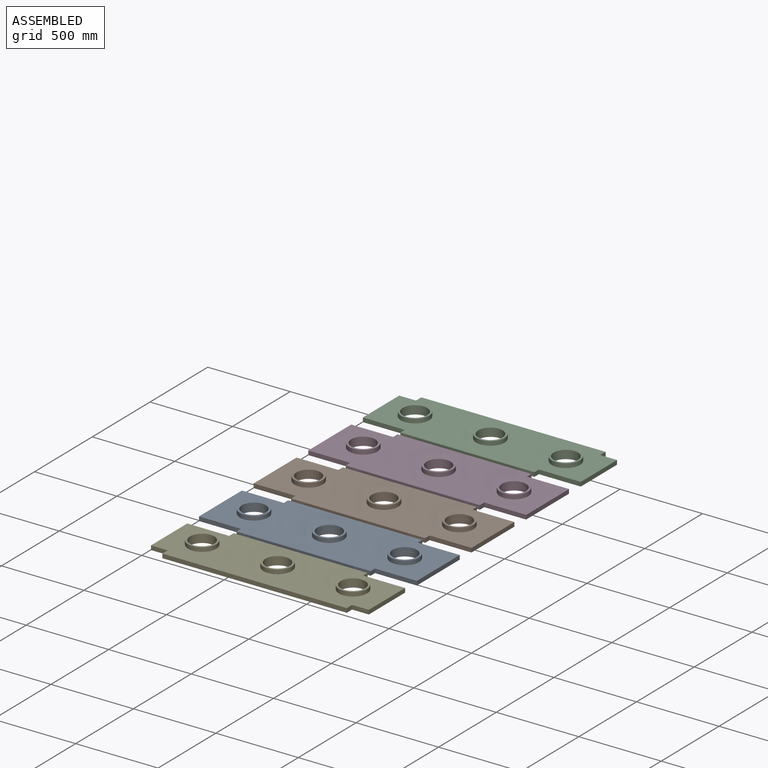
[diagram: assembled view]
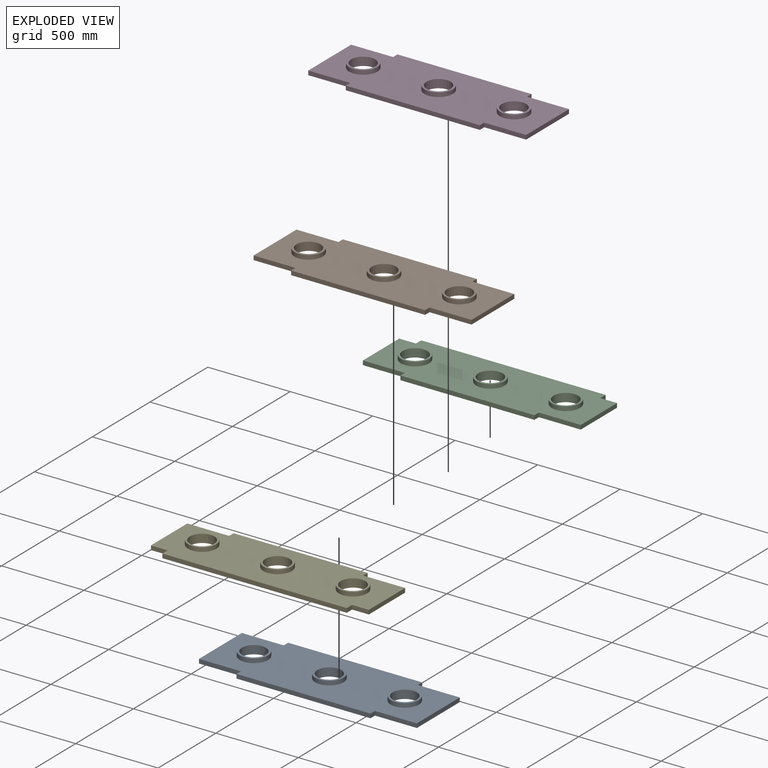
[diagram: exploded view]
GUIDED TOUR — MATED ASSEMBLY (Onshape document b614b5e2732e603632031d25, AutoMate assembly b614b5e2732e603632031d25_f9def03a15eb4cea64b83cd3_bcc4dc0e58ea4e7644620f30_default)

This assembly has 5 components, labeled P0..P4 below (a component is one placed occurrence of a part; the same part can appear more than once), held together by 4 mates. A mate is a constraint between two components; its type names the relative motion it leaves free:
  PLANAR — leaves sliding in the plane through the listed point (normal = the listed direction) and rotation about that normal free.
Axis/direction vectors are unit vectors and 'through' points are millimeter coordinates, both in the assembly's world frame.

MATES
  1. PLANAR "Planar 1": P0 <-> P4, direction (0.000, 0.000, 1.000) through (576.93, -484.45, 142.89) mm
  2. PLANAR "Planar 2": P1 <-> P0, direction (0.000, 0.000, 1.000) through (576.93, -11.38, 142.89) mm
  3. PLANAR "Planar 3": P3 <-> P1, direction (0.000, 0.000, 1.000) through (576.93, 461.70, 142.89) mm
  4. PLANAR "Planar 4": P2 <-> P3, direction (0.000, 0.000, 1.000) through (170.53, 934.77, 142.89) mm

ASSEMBLY ORDER
  1. P4 — the base component [order verified]
  2. P2 [order verified]
  3. P0 [order verified]
  4. P1 [order verified]
  5. P3 [order verified]
Order-tag legend:
  [order verified] — this step's position reverses a verified removal order: the component was checked to insert without passing through the ones already placed.

Of the 5 components, 2 carry the full construction recipe — the FeatureScript program that regenerates the part's solid from scratch; the rest are supplied as boundary geometry only.
Each toured component is shown spotlighted twice — in the assembled view, then in the exploded view, where a leader line traces a displaced component back to its assembled socket (saturated green if recipe-attached, orange if geometry-only; every other component desaturated gray) — followed by its recipe or geometry summary and the mates that hold it.
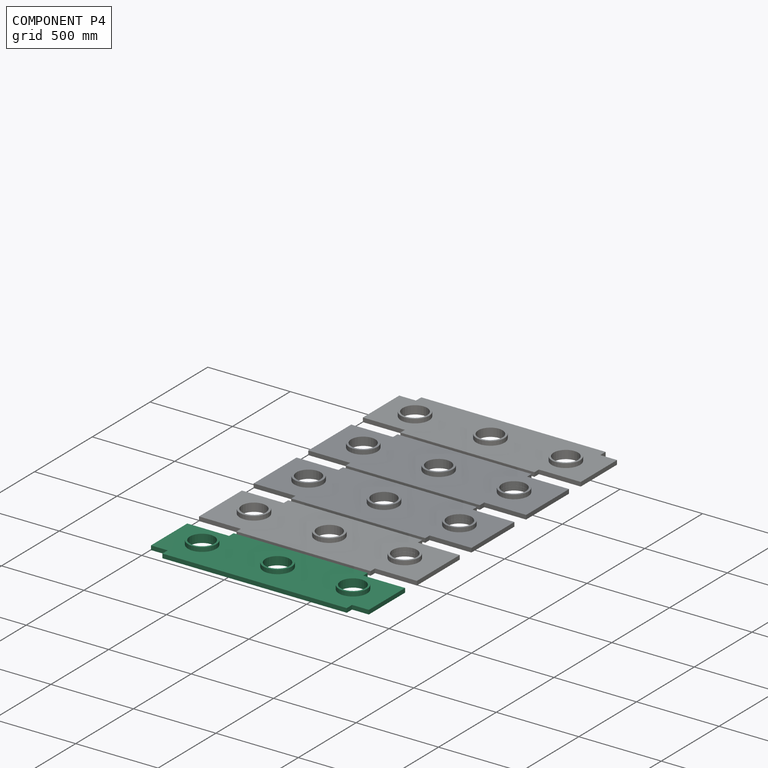
[diagram: component P4 — assembled]
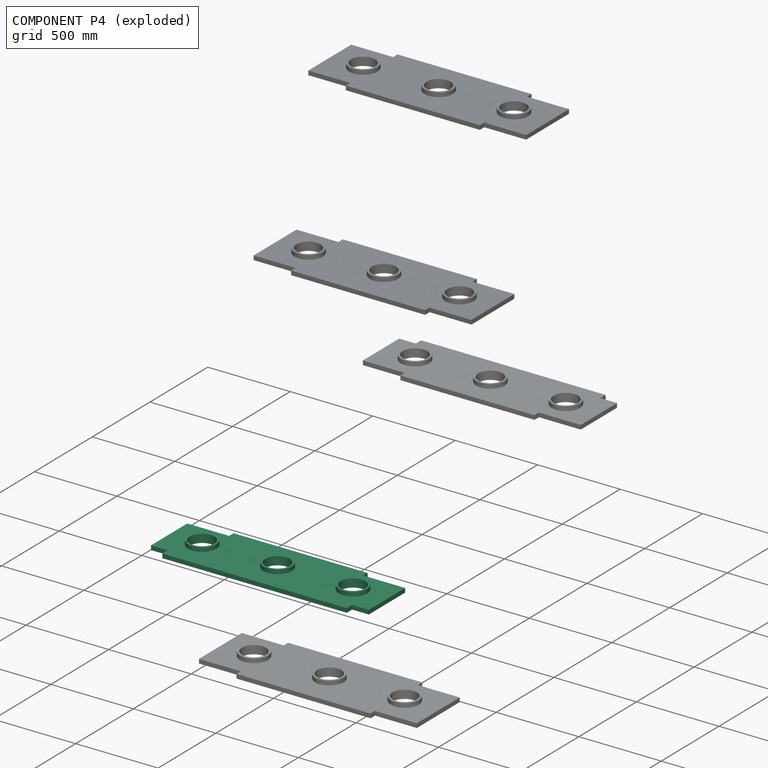
[diagram: component P4 — exploded]
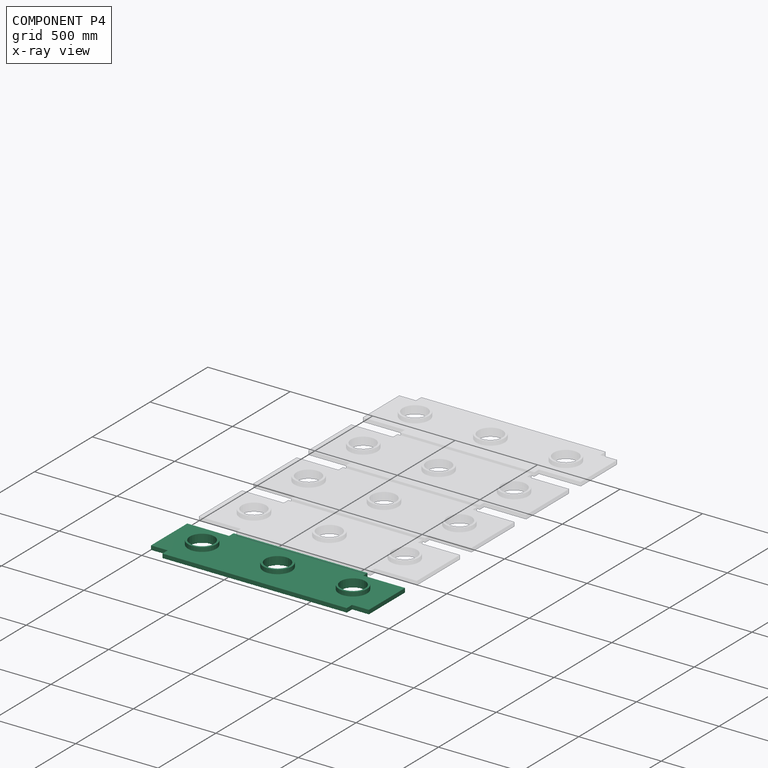
[diagram: component P4 — x-ray view]
COMPONENT P4 — same part as P2 (CADFS 00134554); its construction recipe is shown at P2.
Held by: PLANAR mate "Planar 1" to P0.
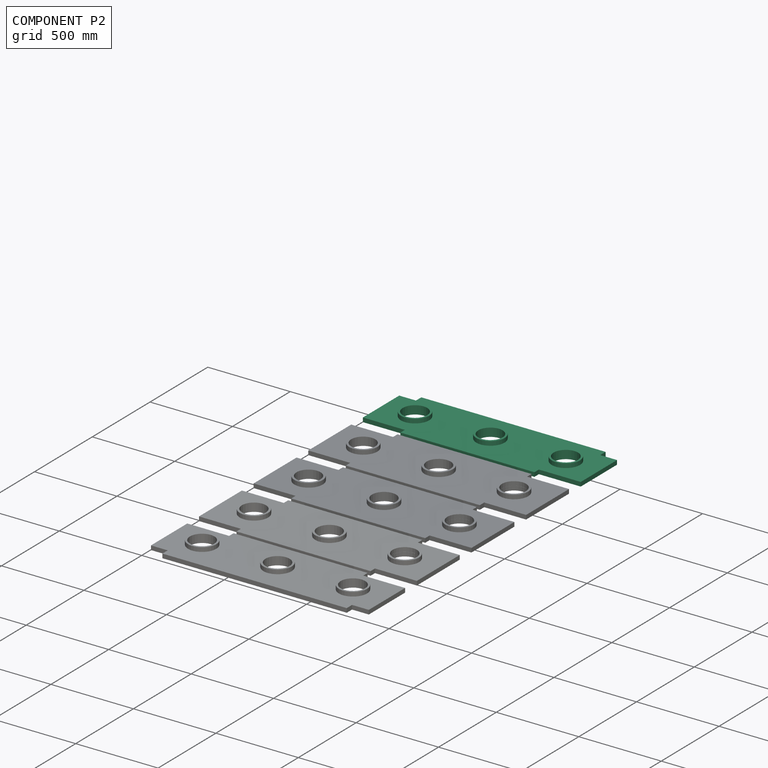
[diagram: component P2 — assembled]
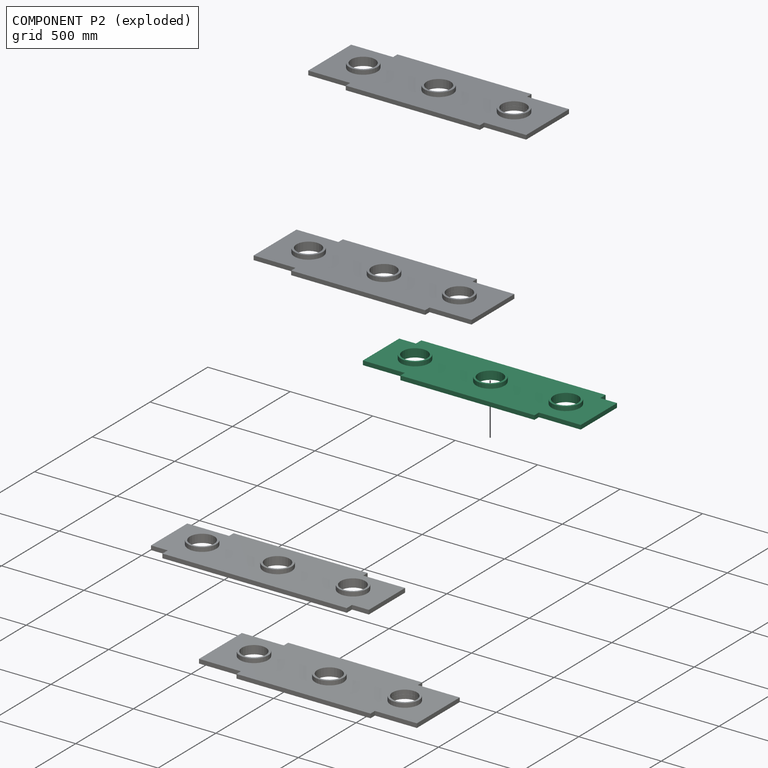
[diagram: component P2 — exploded]
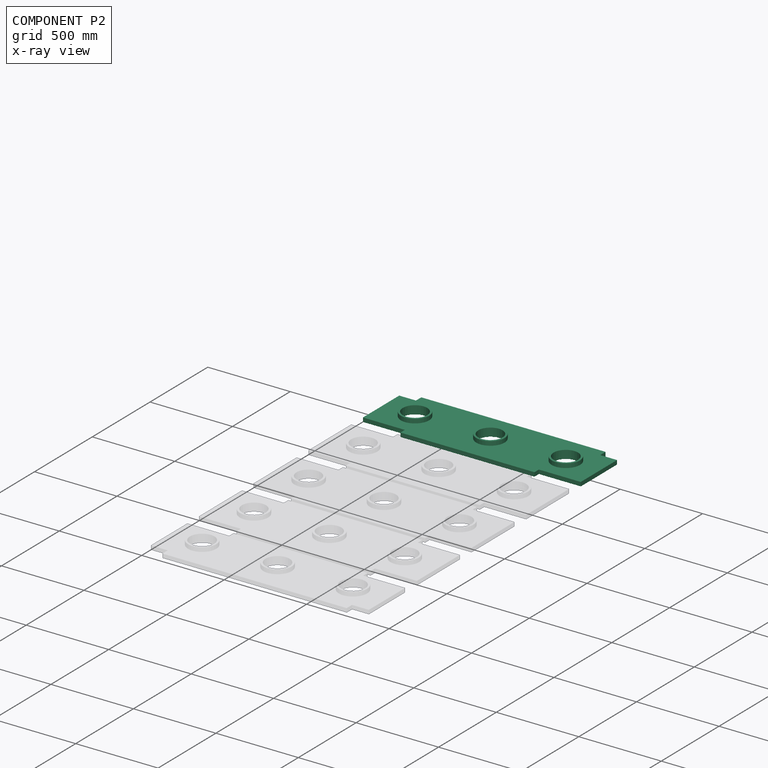
[diagram: component P2 — x-ray view]
COMPONENT P2 — recipe-attached (CADFS 00134554, mesh-verified: the recipe's output STEP matches this component's geometry to below the mesh-comparison resolution (tessellation chordal tolerance ~2.07 mm)).
Held by: PLANAR mate "Planar 4" to P3.
Construction recipe (FeatureScript — the CAD program that rebuilds this solid; sketch coordinates are in the units given by the * unit suffixes, e.g. mm):

FeatureScript 2491;
import(path : "onshape/std/geometry.fs", version : "2491.0");
import(path : "onshape/std/common.fs", version : "2491.0");
const mm = millimeter;
const VERTEX = EntityType.VERTEX;
const EDGE = EntityType.EDGE;
const FACE = EntityType.FACE;
const BODY = EntityType.BODY;
function v(x, y){return vector(x, y);}
function OD(order){return orderDisambiguation(order);}
function OSD(set){return originalSetDisambiguation(set);}
function TD(topology){return topologyDisambiguation(topology);}
function TDD(query){return trueDependencyDisambiguation(query);}
function sQuery(a, b, c) {return sketchEntityQuery(a, b, c);}

annotation { "Feature Type Name" : "Feature", "Feature Type Description" : "" }
export const myFeature = defineFeature(function(context is Context, id is Id, definition is map)
    precondition{}
    {
        {
            var Q0;
            Q0=qCreatedBy(makeId("Top.planeOp"),FACE);
            var sketch = newSketch(context, id + "F0", { "sketchPlane" : qUnion([Q0])});
            skLineSegment(sketch, "E0", {"start": v(-60.36, 306.04) * mm, "end": v(-60.36, -8.28) * mm});
            skLineSegment(sketch, "E1", {"start": v(-60.36, -8.28) * mm, "end": v(41.24, -8.28) * mm});
            skLineSegment(sketch, "E2", {"start": v(41.24, -8.28) * mm, "end": v(41.24, -54.32) * mm});
            skLineSegment(sketch, "E3", {"start": v(41.24, -54.32) * mm, "end": v(1158.84, -54.32) * mm});
            skLineSegment(sketch, "E4", {"start": v(1158.84, -54.32) * mm, "end": v(1158.84, -8.28) * mm});
            skLineSegment(sketch, "E5", {"start": v(1158.84, -8.28) * mm, "end": v(1260.44, -8.28) * mm});
            skLineSegment(sketch, "E6", {"start": v(1260.44, -8.28) * mm, "end": v(1260.44, 306.04) * mm});
            skLineSegment(sketch, "E7", {"start": v(1260.44, 306.04) * mm, "end": v(1006.44, 306.04) * mm});
            skLineSegment(sketch, "E8", {"start": v(1006.44, 306.04) * mm, "end": v(1006.44, 344.14) * mm});
            skLineSegment(sketch, "E9", {"start": v(1006.44, 344.14) * mm, "end": v(193.64, 344.14) * mm});
            skLineSegment(sketch, "E10", {"start": v(193.64, 344.14) * mm, "end": v(193.64, 306.04) * mm});
            skLineSegment(sketch, "E11", {"start": v(193.64, 306.04) * mm, "end": v(-60.36, 306.04) * mm});
            skLineSegment(sketch, "E12", {"start": v(600.04, -54.32) * mm, "end": v(600.04, 344.14) * mm});
            skCircle(sketch, "E13", {"center": v(600.04, 144.91) * mm, "radius": 85.73 * mm});
            skCircle(sketch, "E14", {"center": v(600.04, 144.91) * mm, "radius": 73.68 * mm});
            skLineSegment(sketch, "E15", {"start": v(600.04, 144.91) * mm, "end": v(142.84, 144.91) * mm});
            skLineSegment(sketch, "E16", {"start": v(600.04, 144.91) * mm, "end": v(1057.24, 144.91) * mm});
            skCircle(sketch, "E17", {"center": v(142.84, 144.91) * mm, "radius": 85.73 * mm});
            skCircle(sketch, "E18", {"center": v(1057.24, 144.91) * mm, "radius": 85.73 * mm});
            skCircle(sketch, "E19", {"center": v(142.84, 144.91) * mm, "radius": 74.19 * mm});
            skCircle(sketch, "E20", {"center": v(1057.24, 144.91) * mm, "radius": 74.37 * mm});
            skSolve(sketch);
        }
        {
            var Q0;
            Q0 = qSketchRegion(id + "F0", true);
            extrude(context, id + "F1", {"entities" : qUnion([Q0]), "depth" : 25.4 * mm});
        }
        {
            var Q0;
            Q0=makeQuery(id+"F0.imprint","IMPRINT",FACE,{"disambiguationData":[TD([[makeQuery(id+"F0.imprint","IMPRINT",EDGE,{"derivedFrom":sQuery(id+"F0.wireOp",EDGE,"E17")}),1.0]])]});
            extrude(context, id + "F2", {"entities" : qUnion([Q0]), "operationType" : NewBodyOperationType.ADD, "depth" : 50.8 * mm});
        }
        {
            var Q0;
            {var subQ0=sQuery(id+"F0.wireOp",EDGE,"E13");var subQ1=sQuery(id+"F0.wireOp",EDGE,"E12");var subQ2=makeQuery(id+"F0.imprint","INTERSECT",VERTEX,{"disambiguationData":[OD(0.0)],"derivedFrom":[subQ1,subQ0]});Q0=makeQuery(id+"F0.imprint","IMPRINT",FACE,{"disambiguationData":[TD([[makeQuery(id+"F0.imprint","IMPRINT",EDGE,{"disambiguationData":[TD([[subQ2,-1.0]])],"derivedFrom":subQ1}),-1.0]])]});}
            var Q1;
            {var subQ0=sQuery(id+"F0.wireOp",EDGE,"E14");var subQ1=sQuery(id+"F0.wireOp",EDGE,"E12");var subQ2=makeQuery(id+"F0.imprint","INTERSECT",VERTEX,{"disambiguationData":[OD(1.0)],"derivedFrom":[subQ1,subQ0]});Q1=makeQuery(id+"F0.imprint","IMPRINT",FACE,{"disambiguationData":[TD([[makeQuery(id+"F0.imprint","IMPRINT",EDGE,{"disambiguationData":[TD([[subQ2,-1.0]])],"derivedFrom":subQ1}),-1.0]])]});}
            var Q2;
            {var subQ0=sQuery(id+"F0.wireOp",EDGE,"E14");var subQ1=sQuery(id+"F0.wireOp",EDGE,"E12");var subQ2=makeQuery(id+"F0.imprint","INTERSECT",VERTEX,{"disambiguationData":[OD(1.0)],"derivedFrom":[subQ1,subQ0]});Q2=makeQuery(id+"F0.imprint","IMPRINT",FACE,{"disambiguationData":[TD([[makeQuery(id+"F0.imprint","IMPRINT",EDGE,{"disambiguationData":[TD([[subQ2,-1.0]])],"derivedFrom":subQ1}),1.0]])]});}
            var Q3;
            {var subQ0=sQuery(id+"F0.wireOp",EDGE,"E13");var subQ1=sQuery(id+"F0.wireOp",EDGE,"E12");var subQ2=makeQuery(id+"F0.imprint","INTERSECT",VERTEX,{"disambiguationData":[OD(0.0)],"derivedFrom":[subQ1,subQ0]});Q3=makeQuery(id+"F0.imprint","IMPRINT",FACE,{"disambiguationData":[TD([[makeQuery(id+"F0.imprint","IMPRINT",EDGE,{"disambiguationData":[TD([[subQ2,-1.0]])],"derivedFrom":subQ1}),1.0]])]});}
            extrude(context, id + "F3", {"entities" : qUnion([Q0, Q1, Q2, Q3]), "operationType" : NewBodyOperationType.ADD, "depth" : 50.8 * mm});
        }
        {
            var Q0;
            Q0=makeQuery(id+"F0.imprint","IMPRINT",FACE,{"disambiguationData":[TD([[makeQuery(id+"F0.imprint","IMPRINT",EDGE,{"derivedFrom":sQuery(id+"F0.wireOp",EDGE,"E18")}),1.0]])]});
            extrude(context, id + "F4", {"entities" : qUnion([Q0]), "operationType" : NewBodyOperationType.ADD, "depth" : 50.8 * mm});
        }
    });
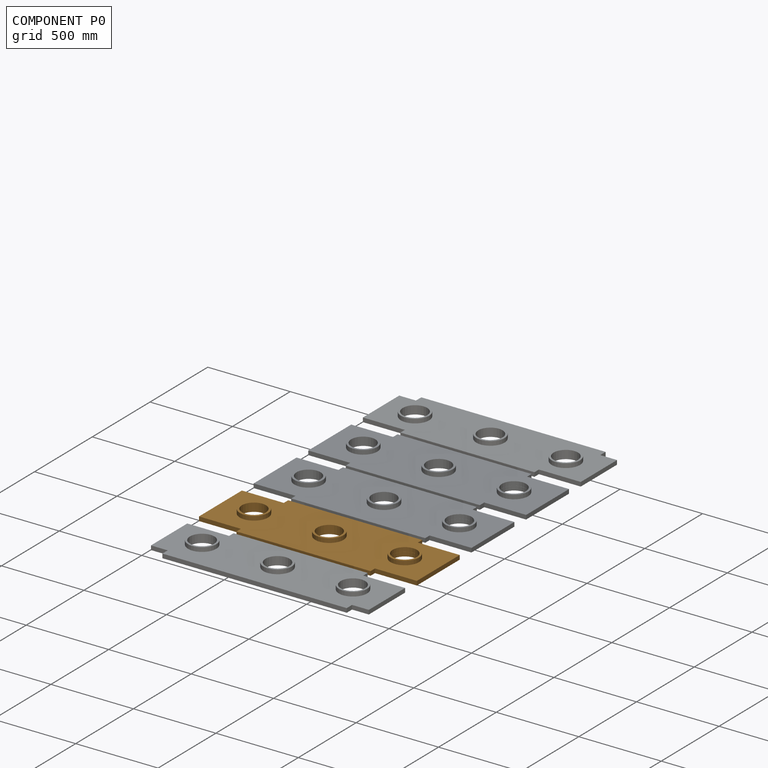
[diagram: component P0 — assembled]
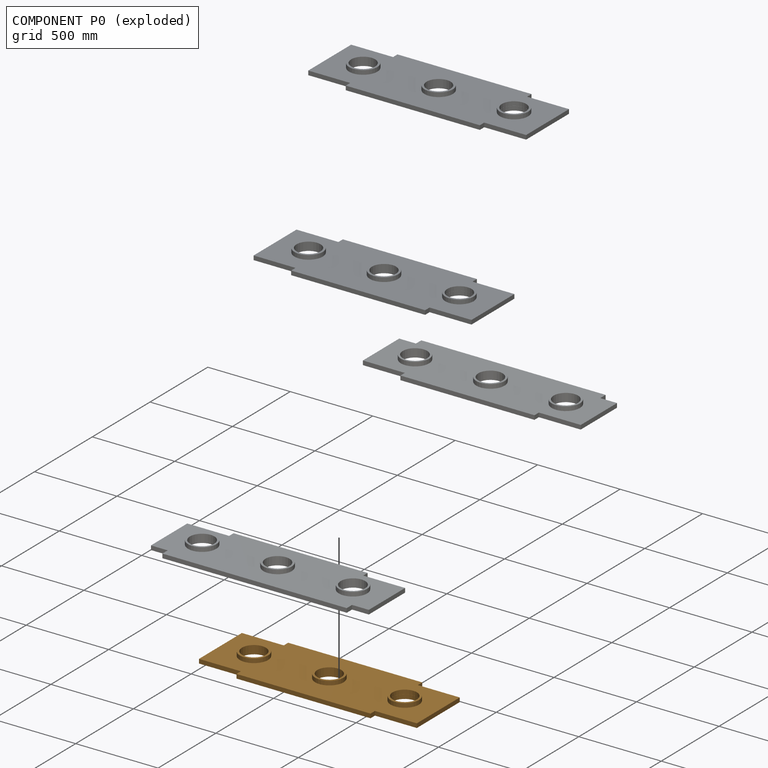
[diagram: component P0 — exploded]
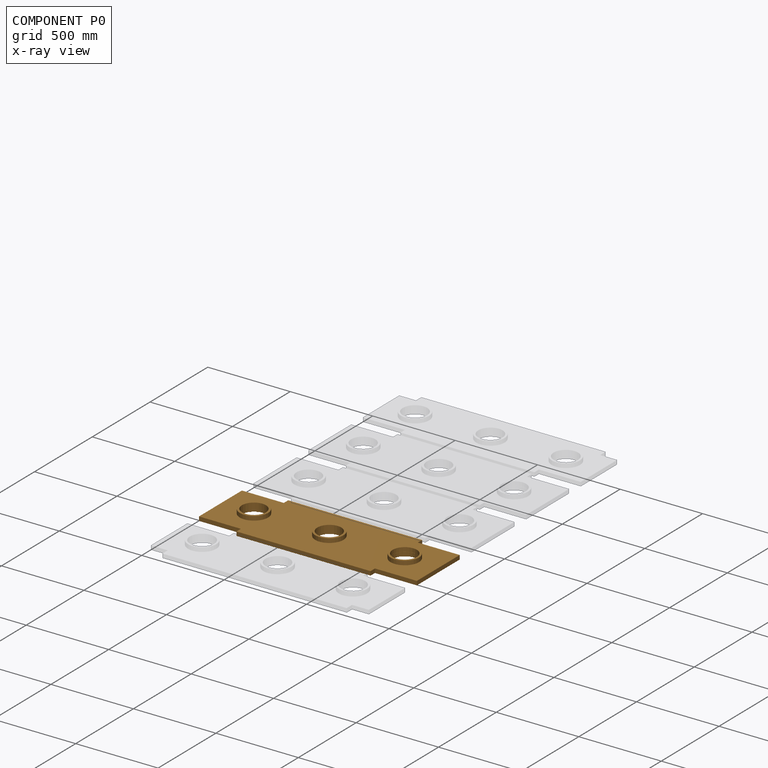
[diagram: component P0 — x-ray view]
COMPONENT P0 — geometry summary (no construction recipe available for this part):
  bounding box: 1320.8 x 447.7 x 50.8 mm
  B-rep topology: 1 solid, 25 faces, 114 edges
  volume: 13234749 mm^3 (44% of its bounding box)
  symmetry: 2-fold rotationally symmetric about the z axis; mirror-symmetric across its x mid-plane, y mid-plane
Held by: PLANAR mate "Planar 1" to P4; PLANAR mate "Planar 2" to P1.
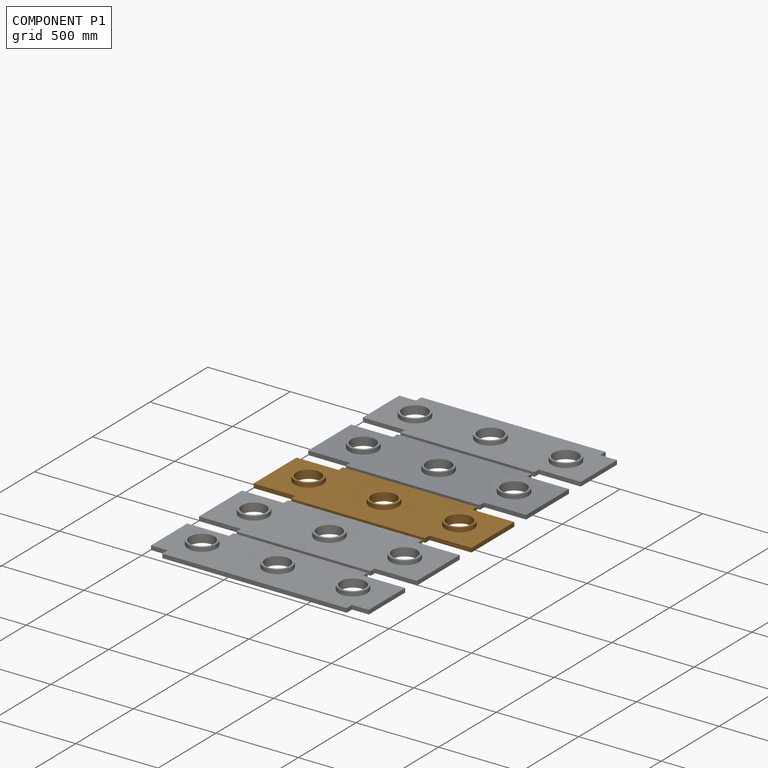
[diagram: component P1 — assembled]
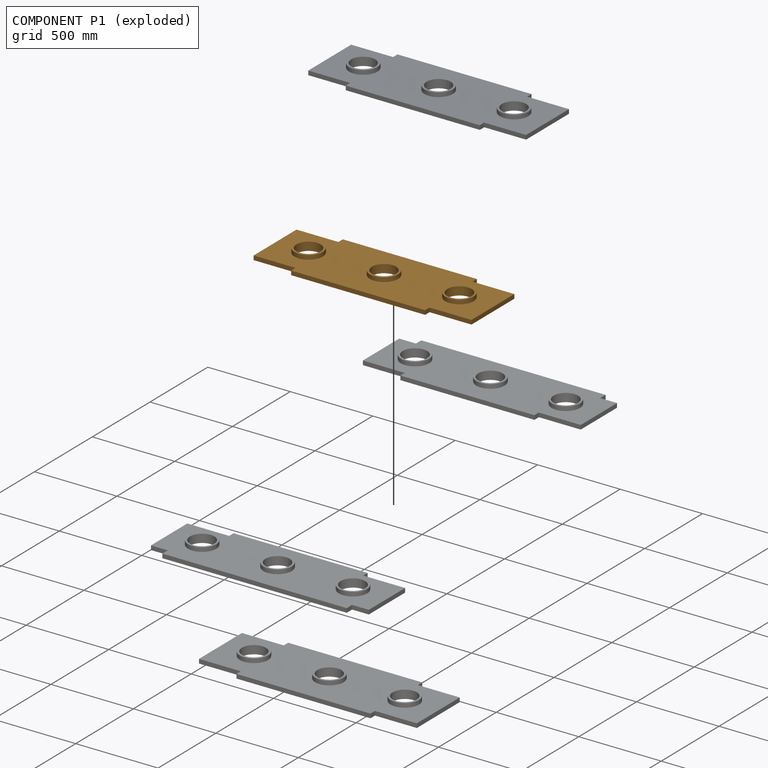
[diagram: component P1 — exploded]
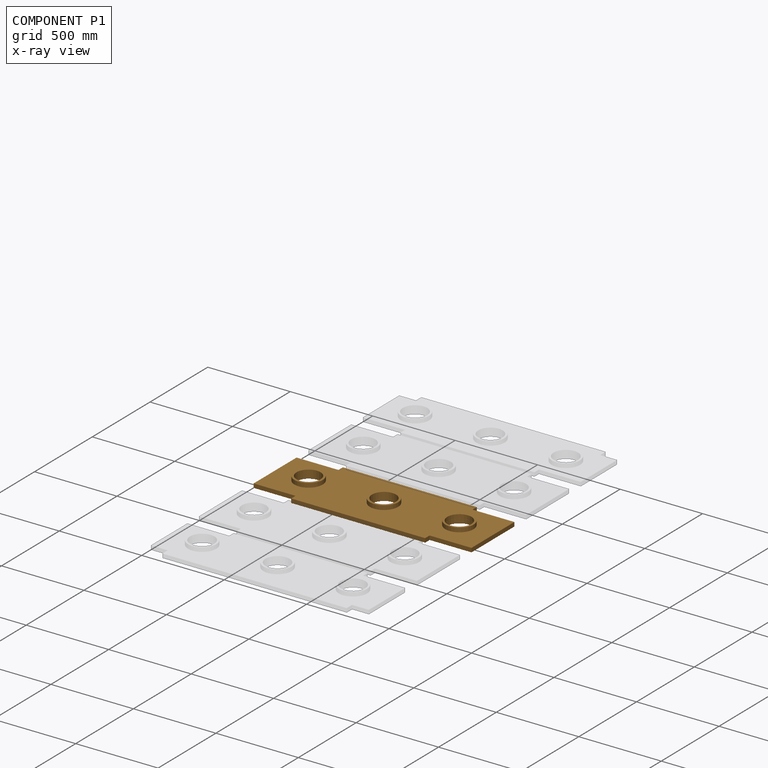
[diagram: component P1 — x-ray view]
COMPONENT P1 — geometry summary (no construction recipe available for this part):
  bounding box: 1320.8 x 447.7 x 50.8 mm
  B-rep topology: 1 solid, 25 faces, 114 edges
  volume: 13234749 mm^3 (44% of its bounding box)
  symmetry: 2-fold rotationally symmetric about the z axis; mirror-symmetric across its x mid-plane, y mid-plane
Held by: PLANAR mate "Planar 2" to P0; PLANAR mate "Planar 3" to P3.
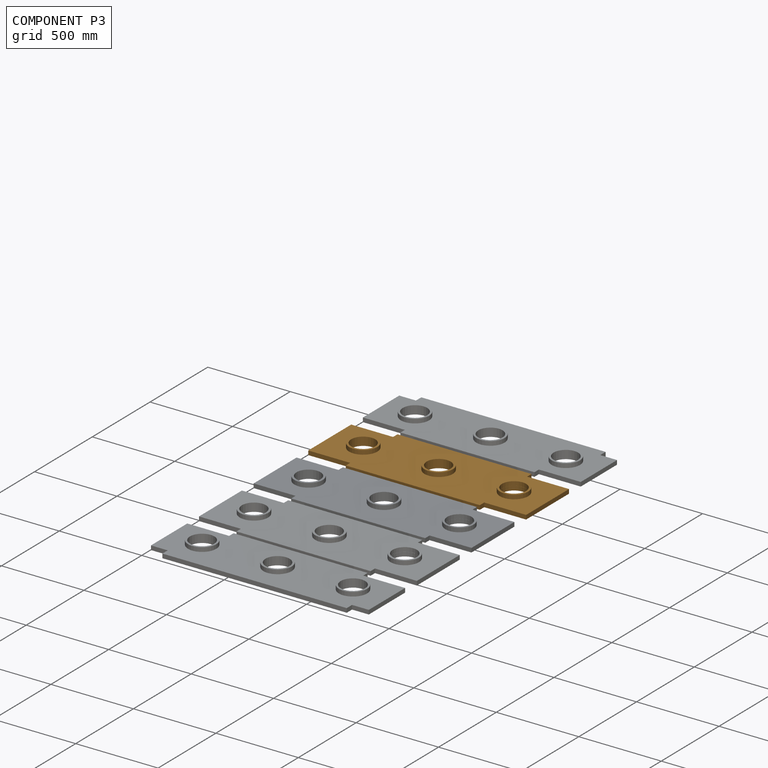
[diagram: component P3 — assembled]
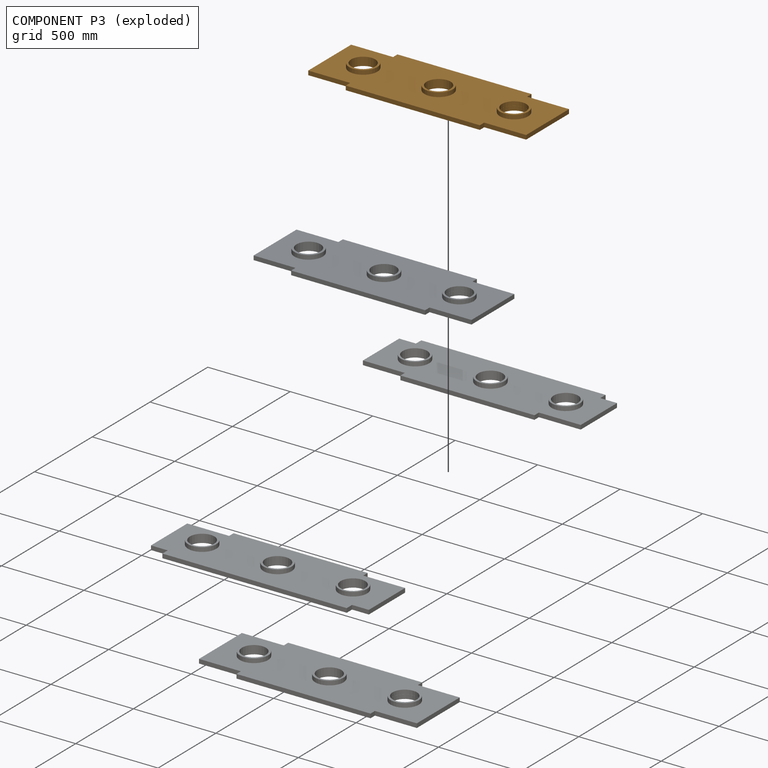
[diagram: component P3 — exploded]
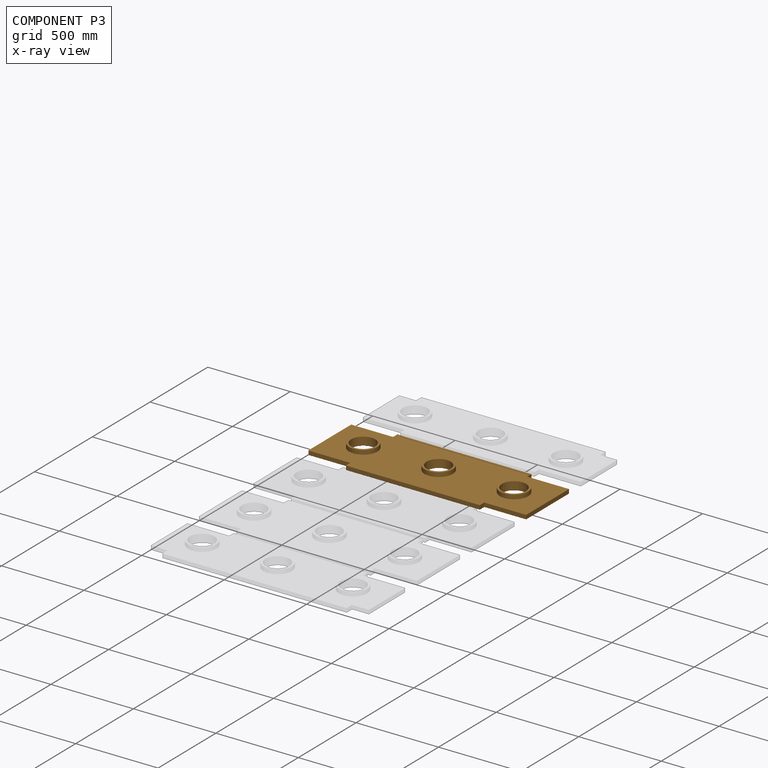
[diagram: component P3 — x-ray view]
COMPONENT P3 — geometry summary (no construction recipe available for this part):
  bounding box: 1320.8 x 447.7 x 50.8 mm
  B-rep topology: 1 solid, 25 faces, 114 edges
  volume: 13234749 mm^3 (44% of its bounding box)
  symmetry: 2-fold rotationally symmetric about the z axis; mirror-symmetric across its x mid-plane, y mid-plane
Held by: PLANAR mate "Planar 3" to P1; PLANAR mate "Planar 4" to P2.
PROVENANCE & LICENSES
Assembly (occurrences, transforms, mates, per-part STEP geometry): AutoMate dataset, Zenodo record 7776208, CC0.
Construction recipes: CADFS (HuggingFace VladPyatov/CADFS, CC-BY-4.0, layered over the ABC dataset), FeatureScript reconstruction programs keyed by ABC model id.
Join: ABC meta listings map ABC model id -> Onshape documentId; within a shared document, parts are matched by geometric signature (bounding-box dims + volume at 0.1% relative tolerance, exact B-rep face/solid counts).
Verification: 2 of this assembly's 5 components carry a recipe attachment, and every attachment is mesh-verified: the CADFS STEP and the AutoMate member STEP were compared as meshes in their shared local frame (symmetric sampled-point-to-mesh distance); worst across the 2 attachments: below the mesh-comparison resolution (tessellation chordal tolerance ~2.07 mm) on a 1381 mm part.
Renders: orthographic iso camera (az 35 / el 25); the floor grid conveys scale (grid pitch printed in each image; no ruler). In the exploded view each component is displaced by its stored offset vector: the offsets alone carry the explosion direction (mate normal/axis signs are not orientation cues and do not encode it), and separation distances are assigned per mate-chain, not proportionally to assembly-order depth.
